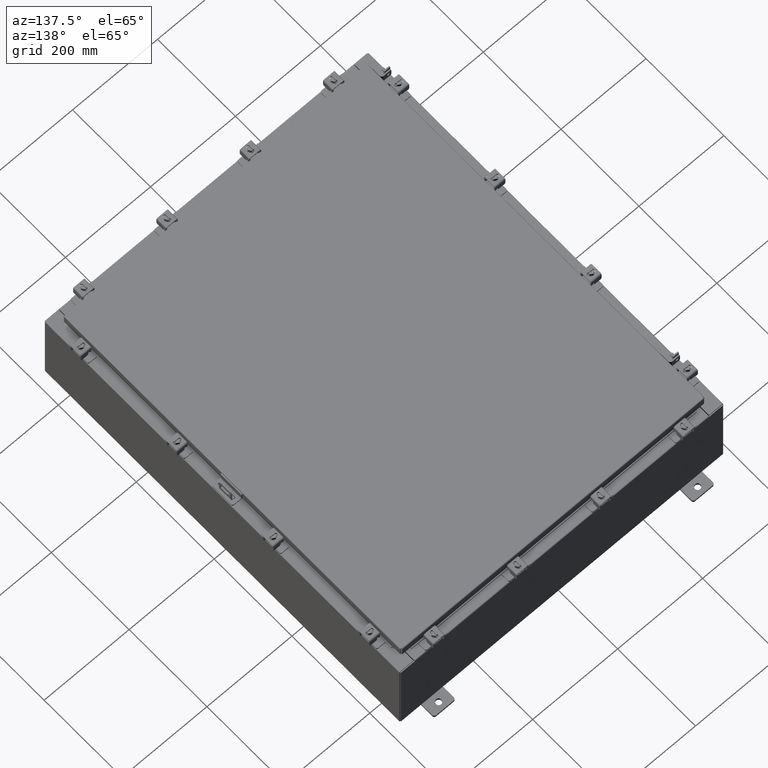
[diagram: clean part render]
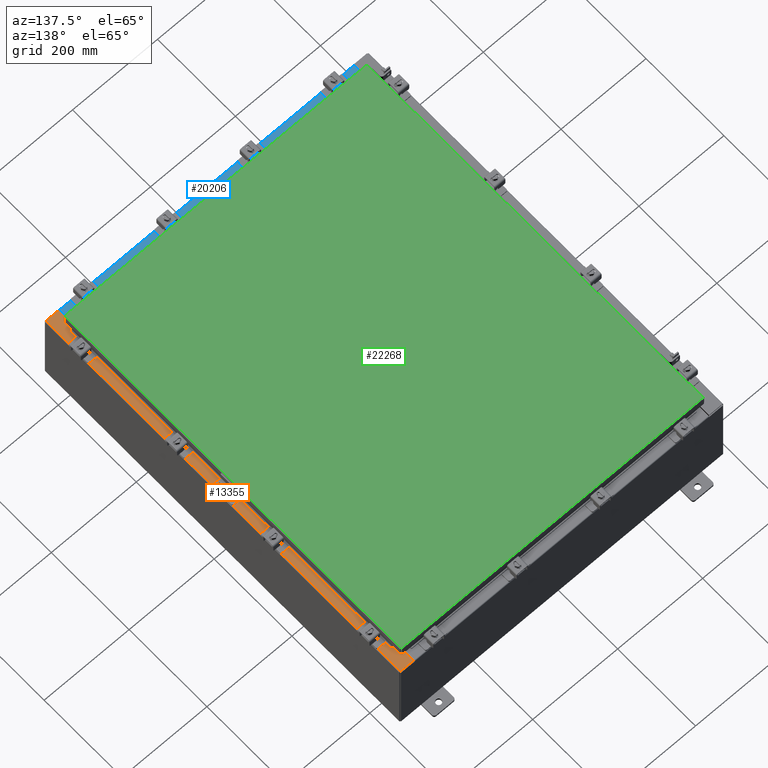
[diagram: same view with three faces highlighted in distinct colors, each labeled with its STEP entity id]
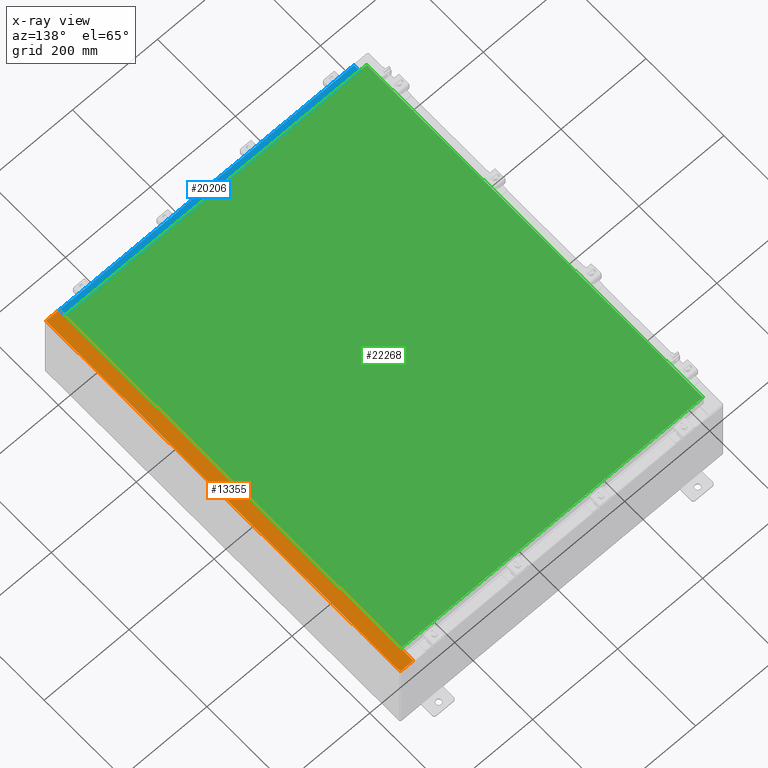
[diagram: x-ray of the same camera — body ghosted, the three highlighted faces saturated]
A machine part, auxiliary view with three faces highlighted in distinct colors.
The next image is the same camera in x-ray (body ghosted, the three faces saturated) — at least one of them is partly hidden behind the body in this view.
Their STEP definitions:

[orange] entity #13355 — the highlighted planar face has unit normal (-0, 0, -1).
#91 = CIRCLE ( 'NONE', #17555, 0.01867499999999949400 ) ;
#981 = CARTESIAN_POINT ( 'NONE',  ( 13.69970000000002800, 0.0000000000000000000, 7.925300000000007100 ) ) ;
#1004 = ORIENTED_EDGE ( 'NONE', *, *, #16087, .F. ) ;
#1234 = VECTOR ( 'NONE', #19946, 39.37007874015748100 ) ;
#1790 = VERTEX_POINT ( 'NONE', #5022 ) ;
#2215 = LINE ( 'NONE', #6880, #2807 ) ;
#2350 = CARTESIAN_POINT ( 'NONE',  ( 13.75005000000002800, 16.61242500000000200, 7.925300000000008900 ) ) ;
#2447 = EDGE_CURVE ( 'NONE', #14194, #13695, #17976, .T. ) ;
#2547 = CARTESIAN_POINT ( 'NONE',  ( 13.69970000000002800, -17.92530000000000000, 7.925300000000007100 ) ) ;
#2807 = VECTOR ( 'NONE', #10658, 39.37007874015748100 ) ;
#2875 = DIRECTION ( 'NONE',  ( -2.156899250920150100E-031, -1.000000000000000000, 1.346156861557936900E-045 ) ) ;
#3037 = CARTESIAN_POINT ( 'NONE',  ( 4.972393517345230000E-014, -17.92530000000000000, 7.925300000000092400 ) ) ;
#3463 = EDGE_CURVE ( 'NONE', #10589, #19854, #20571, .T. ) ;
#3484 = ORIENTED_EDGE ( 'NONE', *, *, #10815, .F. ) ;
#3528 = CARTESIAN_POINT ( 'NONE',  ( 13.71270000000003000, 16.59375000000000000, 7.925300000000008900 ) ) ;
#3928 = ORIENTED_EDGE ( 'NONE', *, *, #22886, .T. ) ;
#4263 = CARTESIAN_POINT ( 'NONE',  ( 13.71270000000003000, 16.59375000000000000, 7.925300000000008900 ) ) ;
#4266 = DIRECTION ( 'NONE',  ( 1.000000000000000000, 0.0000000000000000000, 0.0000000000000000000 ) ) ;
#4513 = CARTESIAN_POINT ( 'NONE',  ( 13.75005000000002800, 16.59375000000000000, 7.925300000000006200 ) ) ;
#4529 = ORIENTED_EDGE ( 'NONE', *, *, #3463, .T. ) ;
#5022 = CARTESIAN_POINT ( 'NONE',  ( 14.91230000000002700, 17.92530000000000000, 7.925300000000000000 ) ) ;
#5492 = CARTESIAN_POINT ( 'NONE',  ( 4.972393517345230000E-014, 17.92530000000000000, 7.925300000000092400 ) ) ;
#5663 = DIRECTION ( 'NONE',  ( -2.156899250920150100E-031, -1.000000000000000000, 1.346156861557936900E-045 ) ) ;
#5877 = EDGE_LOOP ( 'NONE', ( #14195, #4529, #16598, #18294, #3928, #6824, #19396, #12134, #3484, #13353, #1004, #16493 ) ) ;
#6314 = VERTEX_POINT ( 'NONE', #15534 ) ;
#6482 = CARTESIAN_POINT ( 'NONE',  ( 13.69970000000002800, 16.63110000000000400, 7.925300000000007100 ) ) ;
#6541 = CARTESIAN_POINT ( 'NONE',  ( 4.972393517345230000E-014, 0.0000000000000000000, 7.925300000000092400 ) ) ;
#6560 = CARTESIAN_POINT ( 'NONE',  ( 13.75005000000002800, 16.63110000000000000, 7.925300000000006200 ) ) ;
#6824 = ORIENTED_EDGE ( 'NONE', *, *, #17041, .T. ) ;
#6880 = CARTESIAN_POINT ( 'NONE',  ( 13.69970000000002800, -16.63110000000000400, 7.925300000000008900 ) ) ;
#6974 = DIRECTION ( 'NONE',  ( 6.241167087353086200E-015, 0.0000000000000000000, 1.000000000000000000 ) ) ;
#7326 = VECTOR ( 'NONE', #15677, 39.37007874015748100 ) ;
#7387 = EDGE_CURVE ( 'NONE', #10930, #20587, #10131, .T. ) ;
#7415 = CARTESIAN_POINT ( 'NONE',  ( 13.69970000000002800, -16.63110000000000400, 7.925300000000007100 ) ) ;
#8457 = DIRECTION ( 'NONE',  ( -6.241167087353086200E-015, 0.0000000000000000000, -1.000000000000000000 ) ) ;
#8539 = DIRECTION ( 'NONE',  ( -1.000000000000000000, 0.0000000000000000000, 6.241167087353086200E-015 ) ) ;
#8638 = CARTESIAN_POINT ( 'NONE',  ( 14.91230000000002700, -17.92530000000000000, 7.925300000000000000 ) ) ;
#8696 = DIRECTION ( 'NONE',  ( -1.000000000000000000, 0.0000000000000000000, 0.0000000000000000000 ) ) ;
#8739 = CARTESIAN_POINT ( 'NONE',  ( 13.71270000000003000, -16.59375000000000000, 7.925300000000008900 ) ) ;
#9413 = VECTOR ( 'NONE', #14381, 39.37007874015748100 ) ;
#9428 = FACE_OUTER_BOUND ( 'NONE', #5877, .T. ) ;
#10131 = LINE ( 'NONE', #15349, #15174 ) ;
#10561 = VECTOR ( 'NONE', #2875, 39.37007874015748100 ) ;
#10589 = VERTEX_POINT ( 'NONE', #7415 ) ;
#10658 = DIRECTION ( 'NONE',  ( 1.000000000000000000, 4.340572780399910900E-014, 0.0000000000000000000 ) ) ;
#10815 = EDGE_CURVE ( 'NONE', #13695, #19255, #20478, .T. ) ;
#10930 = VERTEX_POINT ( 'NONE', #6560 ) ;
#11002 = EDGE_CURVE ( 'NONE', #1790, #11917, #21928, .T. ) ;
#11086 = VECTOR ( 'NONE', #5663, 39.37007874015748100 ) ;
#11193 = CARTESIAN_POINT ( 'NONE',  ( 14.91230000000002700, -17.92530000000000000, 7.925300000000000000 ) ) ;
#11402 = CARTESIAN_POINT ( 'NONE',  ( 13.69970000000002800, 17.92530000000000000, 7.925300000000007100 ) ) ;
#11808 = CIRCLE ( 'NONE', #19575, 0.01867499999999949400 ) ;
#11917 = VERTEX_POINT ( 'NONE', #11193 ) ;
#12043 = CARTESIAN_POINT ( 'NONE',  ( 13.75005000000002800, -16.63110000000000000, 7.925300000000006200 ) ) ;
#12134 = ORIENTED_EDGE ( 'NONE', *, *, #22230, .F. ) ;
#12724 = EDGE_CURVE ( 'NONE', #16568, #6314, #11808, .T. ) ;
#13353 = ORIENTED_EDGE ( 'NONE', *, *, #2447, .F. ) ;
#13355 = ADVANCED_FACE ( 'NONE', ( #9428 ), #16067, .F. ) ;
#13695 = VERTEX_POINT ( 'NONE', #3528 ) ;
#14194 = VERTEX_POINT ( 'NONE', #8739 ) ;
#14195 = ORIENTED_EDGE ( 'NONE', *, *, #20743, .F. ) ;
#14381 = DIRECTION ( 'NONE',  ( 1.000000000000000000, 2.717614574405843200E-032, -6.241167087353087800E-015 ) ) ;
#14670 = VECTOR ( 'NONE', #8696, 39.37007874015748100 ) ;
#15045 = LINE ( 'NONE', #3037, #9413 ) ;
#15174 = VECTOR ( 'NONE', #19145, 39.37007874015748100 ) ;
#15349 = CARTESIAN_POINT ( 'NONE',  ( 13.75005000000002800, 16.63110000000000000, 7.925300000000008900 ) ) ;
#15480 = VECTOR ( 'NONE', #17406, 39.37007874015748100 ) ;
#15534 = CARTESIAN_POINT ( 'NONE',  ( 13.75005000000002800, -16.59375000000000000, 7.925300000000006200 ) ) ;
#15611 = DIRECTION ( 'NONE',  ( 6.241167087353086200E-015, 0.0000000000000000000, 1.000000000000000000 ) ) ;
#15677 = DIRECTION ( 'NONE',  ( -0.0000000000000000000, 1.000000000000000000, -0.0000000000000000000 ) ) ;
#16067 = PLANE ( 'NONE',  #22392 ) ;
#16087 = EDGE_CURVE ( 'NONE', #6314, #14194, #19697, .T. ) ;
#16493 = ORIENTED_EDGE ( 'NONE', *, *, #12724, .F. ) ;
#16568 = VERTEX_POINT ( 'NONE', #12043 ) ;
#16598 = ORIENTED_EDGE ( 'NONE', *, *, #17095, .T. ) ;
#17041 = EDGE_CURVE ( 'NONE', #21113, #20587, #20638, .T. ) ;
#17095 = EDGE_CURVE ( 'NONE', #19854, #11917, #15045, .T. ) ;
#17406 = DIRECTION ( 'NONE',  ( 1.000000000000000000, 0.0000000000000000000, 0.0000000000000000000 ) ) ;
#17555 = AXIS2_PLACEMENT_3D ( 'NONE', #2350, #15611, #4266 ) ;
#17833 = LINE ( 'NONE', #5492, #22824 ) ;
#17976 = LINE ( 'NONE', #19460, #7326 ) ;
#18125 = CARTESIAN_POINT ( 'NONE',  ( 13.75005000000002800, -16.59375000000000000, 7.925300000000008900 ) ) ;
#18294 = ORIENTED_EDGE ( 'NONE', *, *, #11002, .F. ) ;
#18311 = CARTESIAN_POINT ( 'NONE',  ( 13.75005000000002800, -16.61242500000000200, 7.925300000000008900 ) ) ;
#18735 = DIRECTION ( 'NONE',  ( -1.000000000000000000, 0.0000000000000000000, 6.241167087353087800E-015 ) ) ;
#18908 = CARTESIAN_POINT ( 'NONE',  ( 13.69970000000002800, 0.0000000000000000000, 7.925300000000007100 ) ) ;
#19145 = DIRECTION ( 'NONE',  ( -1.000000000000000000, 4.340572780399910900E-014, 0.0000000000000000000 ) ) ;
#19255 = VERTEX_POINT ( 'NONE', #4513 ) ;
#19396 = ORIENTED_EDGE ( 'NONE', *, *, #7387, .F. ) ;
#19460 = CARTESIAN_POINT ( 'NONE',  ( 13.71270000000003000, -16.59375000000000000, 7.925300000000008900 ) ) ;
#19575 = AXIS2_PLACEMENT_3D ( 'NONE', #18311, #6974, #20197 ) ;
#19697 = LINE ( 'NONE', #18125, #14670 ) ;
#19854 = VERTEX_POINT ( 'NONE', #2547 ) ;
#19946 = DIRECTION ( 'NONE',  ( -0.0000000000000000000, -1.000000000000000000, -0.0000000000000000000 ) ) ;
#20197 = DIRECTION ( 'NONE',  ( 1.000000000000000000, 0.0000000000000000000, 0.0000000000000000000 ) ) ;
#20478 = LINE ( 'NONE', #4263, #15480 ) ;
#20571 = LINE ( 'NONE', #18908, #11086 ) ;
#20587 = VERTEX_POINT ( 'NONE', #6482 ) ;
#20638 = LINE ( 'NONE', #981, #10561 ) ;
#20743 = EDGE_CURVE ( 'NONE', #10589, #16568, #2215, .T. ) ;
#21113 = VERTEX_POINT ( 'NONE', #11402 ) ;
#21928 = LINE ( 'NONE', #8638, #1234 ) ;
#22230 = EDGE_CURVE ( 'NONE', #19255, #10930, #91, .T. ) ;
#22392 = AXIS2_PLACEMENT_3D ( 'NONE', #6541, #8457, #8539 ) ;
#22824 = VECTOR ( 'NONE', #18735, 39.37007874015748100 ) ;
#22886 = EDGE_CURVE ( 'NONE', #1790, #21113, #17833, .T. ) ;

[blue] entity #20206 — the highlighted planar face has unit normal (-0, -0, 1).
#283 = EDGE_CURVE ( 'NONE', #11640, #5156, #21883, .T. ) ;
#869 = CARTESIAN_POINT ( 'NONE',  ( 6.596618369225443700E-016, -0.08770000000000026400, 4.000000000000000900 ) ) ;
#1897 = FACE_OUTER_BOUND ( 'NONE', #16139, .T. ) ;
#2773 = LINE ( 'NONE', #869, #22871 ) ;
#3548 = ORIENTED_EDGE ( 'NONE', *, *, #4475, .T. ) ;
#3872 = DIRECTION ( 'NONE',  ( 5.376446204296997200E-017, 1.000000000000000000, -3.599933028129398900E-015 ) ) ;
#4475 = EDGE_CURVE ( 'NONE', #11640, #13322, #2773, .T. ) ;
#4857 = VERTEX_POINT ( 'NONE', #15529 ) ;
#5156 = VERTEX_POINT ( 'NONE', #8796 ) ;
#5249 = CARTESIAN_POINT ( 'NONE',  ( 6.661338148662792400E-016, 1.311287036958846300E-014, 4.000000000000000000 ) ) ;
#6505 = VECTOR ( 'NONE', #3872, 39.37007874015748100 ) ;
#7838 = ORIENTED_EDGE ( 'NONE', *, *, #9962, .F. ) ;
#8272 = CARTESIAN_POINT ( 'NONE',  ( 13.63720000000000400, -1.287299999999999200, 4.000000000000005300 ) ) ;
#8796 = CARTESIAN_POINT ( 'NONE',  ( 13.63720000000000400, -1.287299999999999200, 4.000000000000006200 ) ) ;
#9962 = EDGE_CURVE ( 'NONE', #4857, #13322, #21575, .T. ) ;
#10424 = ORIENTED_EDGE ( 'NONE', *, *, #16527, .F. ) ;
#10592 = ORIENTED_EDGE ( 'NONE', *, *, #283, .F. ) ;
#11433 = VECTOR ( 'NONE', #21466, 39.37007874015748100 ) ;
#11640 = VERTEX_POINT ( 'NONE', #14286 ) ;
#11880 = CARTESIAN_POINT ( 'NONE',  ( 13.63720000000000400, -1.300299999999999300, 4.000000000000006200 ) ) ;
#12847 = DIRECTION ( 'NONE',  ( -5.376446204296997200E-017, -1.000000000000000000, 3.599933028129398900E-015 ) ) ;
#13293 = CARTESIAN_POINT ( 'NONE',  ( -13.63719999999999800, -0.07470000000000015500, 3.999999999999997800 ) ) ;
#13322 = VERTEX_POINT ( 'NONE', #19766 ) ;
#14110 = DIRECTION ( 'NONE',  ( -1.000000000000000000, -3.373213873859530100E-017, -1.665334536937734800E-016 ) ) ;
#14286 = CARTESIAN_POINT ( 'NONE',  ( 13.63720000000000400, -0.08770000000000026400, 4.000000000000001800 ) ) ;
#15316 = LINE ( 'NONE', #8272, #11433 ) ;
#15529 = CARTESIAN_POINT ( 'NONE',  ( -13.63719999999999800, -1.287299999999999200, 4.000000000000001800 ) ) ;
#15634 = DIRECTION ( 'NONE',  ( -5.376446204296997200E-017, -1.000000000000000000, 3.599933028129398900E-015 ) ) ;
#16139 = EDGE_LOOP ( 'NONE', ( #7838, #10424, #10592, #3548 ) ) ;
#16527 = EDGE_CURVE ( 'NONE', #5156, #4857, #15316, .T. ) ;
#19766 = CARTESIAN_POINT ( 'NONE',  ( -13.63719999999999800, -0.08770000000000026400, 3.999999999999997800 ) ) ;
#20206 = ADVANCED_FACE ( 'NONE', ( #1897 ), #22257, .T. ) ;
#20713 = VECTOR ( 'NONE', #15634, 39.37007874015748100 ) ;
#20818 = AXIS2_PLACEMENT_3D ( 'NONE', #5249, #24171, #12847 ) ;
#21466 = DIRECTION ( 'NONE',  ( -1.000000000000000000, -5.376446204297056400E-017, -1.665334536937734800E-016 ) ) ;
#21575 = LINE ( 'NONE', #13293, #6505 ) ;
#21883 = LINE ( 'NONE', #11880, #20713 ) ;
#22257 = PLANE ( 'NONE',  #20818 ) ;
#22871 = VECTOR ( 'NONE', #14110, 39.37007874015748100 ) ;
#24171 = DIRECTION ( 'NONE',  ( 1.665334536937734800E-016, 3.599933028129398900E-015, 1.000000000000000000 ) ) ;

[green] entity #22268 — the highlighted planar face has unit normal (0, 0, -1).
#586 = AXIS2_PLACEMENT_3D ( 'NONE', #8155, #613, #13839 ) ;
#613 = DIRECTION ( 'NONE',  ( 0.0000000000000000000, 0.0000000000000000000, -1.000000000000000000 ) ) ;
#1151 = LINE ( 'NONE', #2940, #5001 ) ;
#2933 = CARTESIAN_POINT ( 'NONE',  ( -13.99030000000000000, 17.00630000000000000, 0.0000000000000000000 ) ) ;
#2940 = CARTESIAN_POINT ( 'NONE',  ( -13.99029999999999800, -17.00630000000000300, 0.0000000000000000000 ) ) ;
#3449 = VERTEX_POINT ( 'NONE', #9412 ) ;
#4658 = LINE ( 'NONE', #2933, #24154 ) ;
#4821 = CARTESIAN_POINT ( 'NONE',  ( 13.99029999999999600, 17.00629999999999600, 1.092739197465705300E-015 ) ) ;
#5001 = VECTOR ( 'NONE', #12364, 39.37007874015748100 ) ;
#6182 = CARTESIAN_POINT ( 'NONE',  ( 13.99029999999999800, -17.00630000000000700, 0.0000000000000000000 ) ) ;
#6744 = ORIENTED_EDGE ( 'NONE', *, *, #9029, .T. ) ;
#7703 = CARTESIAN_POINT ( 'NONE',  ( -13.99029999999999800, -17.00630000000000300, 0.0000000000000000000 ) ) ;
#7975 = VERTEX_POINT ( 'NONE', #7703 ) ;
#8155 = CARTESIAN_POINT ( 'NONE',  ( 0.0000000000000000000, 0.0000000000000000000, 0.0000000000000000000 ) ) ;
#9029 = EDGE_CURVE ( 'NONE', #15987, #24446, #24283, .T. ) ;
#9412 = CARTESIAN_POINT ( 'NONE',  ( 13.99029999999999800, -17.00630000000000700, 0.0000000000000000000 ) ) ;
#10230 = EDGE_LOOP ( 'NONE', ( #21070, #11116, #6744, #24104 ) ) ;
#10374 = EDGE_CURVE ( 'NONE', #7975, #3449, #1151, .T. ) ;
#11116 = ORIENTED_EDGE ( 'NONE', *, *, #19819, .T. ) ;
#11797 = CARTESIAN_POINT ( 'NONE',  ( -13.99030000000000000, 17.00630000000000000, 0.0000000000000000000 ) ) ;
#12364 = DIRECTION ( 'NONE',  ( 1.000000000000000000, -0.0000000000000000000, -0.0000000000000000000 ) ) ;
#13785 = DIRECTION ( 'NONE',  ( 0.0000000000000000000, 1.000000000000000000, 0.0000000000000000000 ) ) ;
#13839 = DIRECTION ( 'NONE',  ( -1.000000000000000000, 0.0000000000000000000, -0.0000000000000000000 ) ) ;
#14004 = FACE_OUTER_BOUND ( 'NONE', #10230, .T. ) ;
#14220 = EDGE_CURVE ( 'NONE', #24446, #7975, #4658, .T. ) ;
#14307 = LINE ( 'NONE', #6182, #14923 ) ;
#14923 = VECTOR ( 'NONE', #13785, 39.37007874015748100 ) ;
#15987 = VERTEX_POINT ( 'NONE', #23459 ) ;
#19282 = VECTOR ( 'NONE', #23647, 39.37007874015748100 ) ;
#19819 = EDGE_CURVE ( 'NONE', #3449, #15987, #14307, .T. ) ;
#21070 = ORIENTED_EDGE ( 'NONE', *, *, #10374, .T. ) ;
#22010 = DIRECTION ( 'NONE',  ( 0.0000000000000000000, -1.000000000000000000, 0.0000000000000000000 ) ) ;
#22268 = ADVANCED_FACE ( 'NONE', ( #14004 ), #23247, .F. ) ;
#23247 = PLANE ( 'NONE',  #586 ) ;
#23459 = CARTESIAN_POINT ( 'NONE',  ( 13.99029999999999600, 17.00629999999999600, 1.092739197465705300E-015 ) ) ;
#23647 = DIRECTION ( 'NONE',  ( -1.000000000000000000, -0.0000000000000000000, -0.0000000000000000000 ) ) ;
#24104 = ORIENTED_EDGE ( 'NONE', *, *, #14220, .T. ) ;
#24154 = VECTOR ( 'NONE', #22010, 39.37007874015748100 ) ;
#24283 = LINE ( 'NONE', #4821, #19282 ) ;
#24446 = VERTEX_POINT ( 'NONE', #11797 ) ;